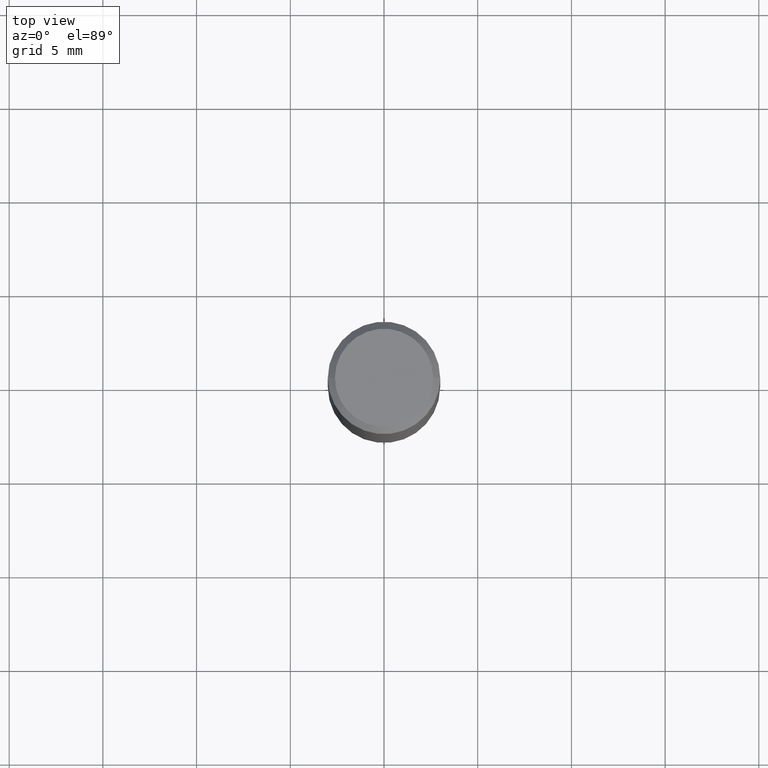
[diagram: clean part render]
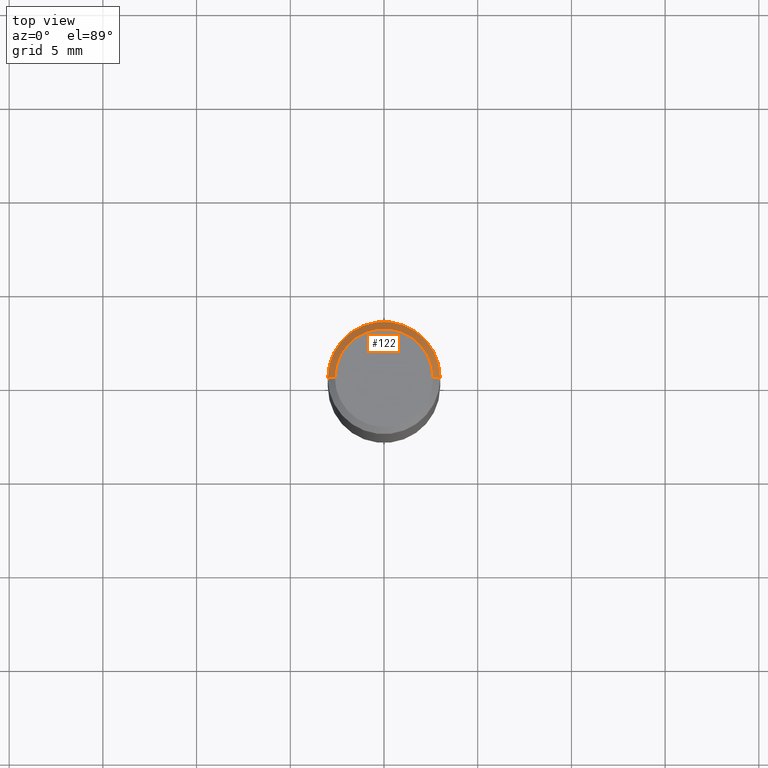
[diagram: same view with one face highlighted and labeled with its STEP entity id]
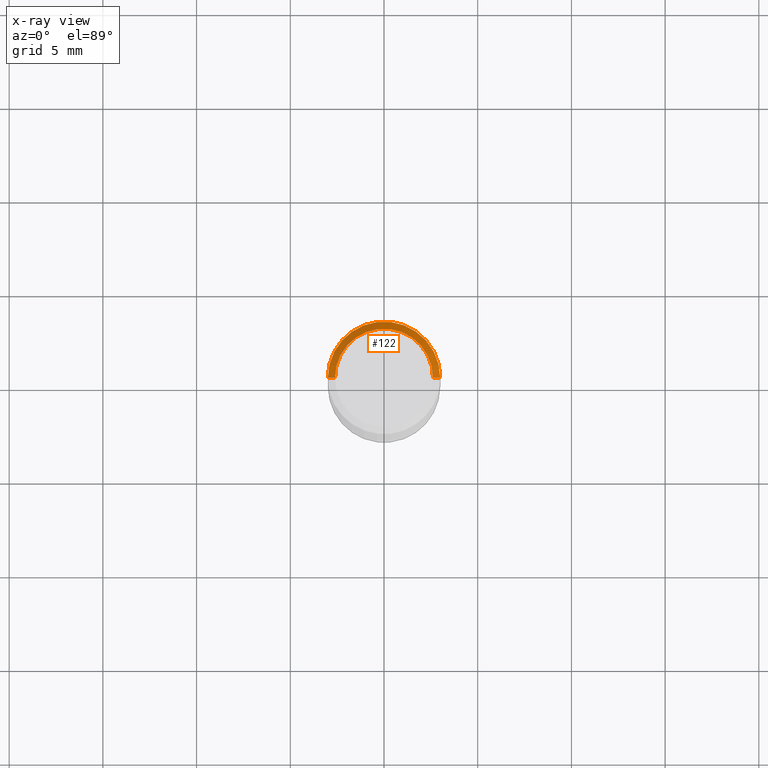
[diagram: x-ray of the same camera — body ghosted, the highlighted face saturated]
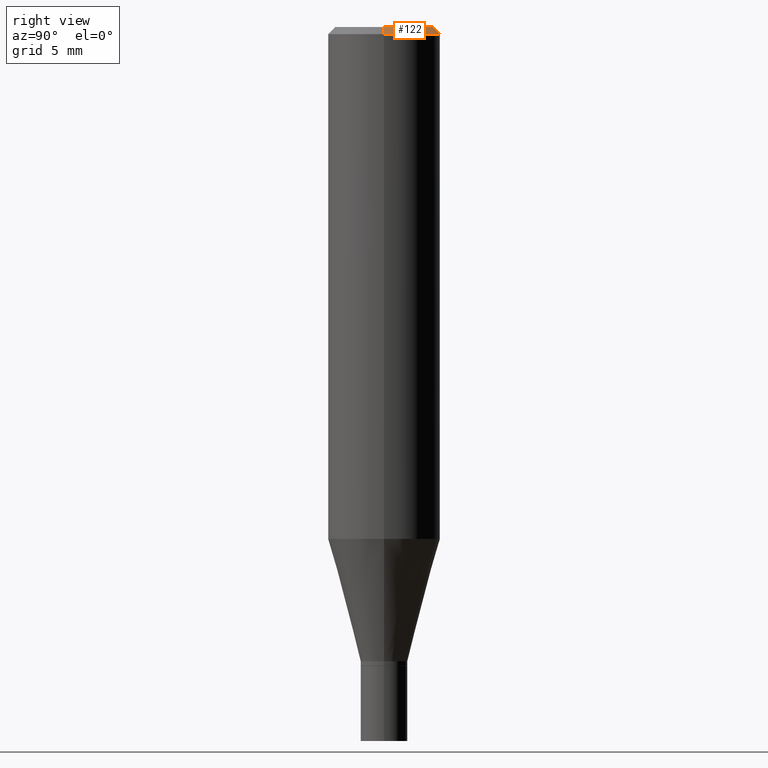
[diagram: same view with one face highlighted and labeled with its STEP entity id]
A machine part, top view. The second image highlights one B-rep face of the part: STEP entity #122.
The next image is the same camera in x-ray: the body ghosted, the highlighted face saturated — about 0% of this face is hidden behind the body in this view.
A second angle (right view) of the same face is appended — the face is thin or edge-on in the first view.
In plain terms, the highlighted conical surface has half-angle 45 deg.
Its self-contained STEP definition (entity closure, byte-faithful):
#3 = FACE_OUTER_BOUND ( 'NONE', #30, .T. ) ;
#28 = ORIENTED_EDGE ( 'NONE', *, *, #133, .T. ) ;
#30 = EDGE_LOOP ( 'NONE', ( #260, #422, #28, #124 ) ) ;
#37 = CARTESIAN_POINT ( 'NONE',  ( 3.668203209277705088E-31, -5.237222008264718399E-17, -0.01499999999999999944 ) ) ;
#57 = CONICAL_SURFACE ( 'NONE', #105, 0.1180999999999999966, 0.7853981633974160825 ) ;
#82 = CARTESIAN_POINT ( 'NONE',  ( 3.668203209277705088E-31, -5.237222008264718399E-17, -0.01499999999999999944 ) ) ;
#90 = CARTESIAN_POINT ( 'NONE',  ( -2.356111900284270779E-44, 3.363903359250623461E-30, 9.634602143871708828E-16 ) ) ;
#105 = AXIS2_PLACEMENT_3D ( 'NONE', #37, #254, #400 ) ;
#118 = DIRECTION ( 'NONE',  ( -2.445468806185136597E-29, 3.491481338843145583E-15, 1.000000000000000000 ) ) ;
#122 = ADVANCED_FACE ( 'NONE', ( #3 ), #57, .T. ) ;
#124 = ORIENTED_EDGE ( 'NONE', *, *, #271, .F. ) ;
#133 = EDGE_CURVE ( 'NONE', #170, #311, #252, .T. ) ;
#136 = VERTEX_POINT ( 'NONE', #140 ) ;
#140 = CARTESIAN_POINT ( 'NONE',  ( -0.1031000000000000111, 7.461295621107793201E-16, 9.634602143871657552E-16 ) ) ;
#153 = DIRECTION ( 'NONE',  ( -0.7071067811865247021, 2.468850131082017641E-15, -0.7071067811865703323 ) ) ;
#162 = LINE ( 'NONE', #390, #415 ) ;
#170 = VERTEX_POINT ( 'NONE', #362 ) ;
#183 = DIRECTION ( 'NONE',  ( -2.445468806185136597E-29, 3.491481338843145583E-15, 1.000000000000000000 ) ) ;
#224 = VERTEX_POINT ( 'NONE', #444 ) ;
#237 = EDGE_CURVE ( 'NONE', #224, #136, #326, .T. ) ;
#252 = CIRCLE ( 'NONE', #315, 0.1180999999999999966 ) ;
#254 = DIRECTION ( 'NONE',  ( 2.445468806185136597E-29, -3.491481338843145583E-15, -1.000000000000000000 ) ) ;
#260 = ORIENTED_EDGE ( 'NONE', *, *, #237, .F. ) ;
#265 = CARTESIAN_POINT ( 'NONE',  ( -0.1180999999999999966, 7.723156721521009862E-16, -0.01499999999999999944 ) ) ;
#269 = AXIS2_PLACEMENT_3D ( 'NONE', #90, #118, #410 ) ;
#271 = EDGE_CURVE ( 'NONE', #136, #311, #301, .T. ) ;
#301 = LINE ( 'NONE', #265, #394 ) ;
#311 = VERTEX_POINT ( 'NONE', #380 ) ;
#315 = AXIS2_PLACEMENT_3D ( 'NONE', #82, #183, #323 ) ;
#323 = DIRECTION ( 'NONE',  ( 1.000000000000000000, -6.982962677686266711E-15, 0.000000000000000000 ) ) ;
#326 = CIRCLE ( 'NONE', #269, 0.1031000000000000111 ) ;
#356 = EDGE_CURVE ( 'NONE', #224, #170, #162, .T. ) ;
#362 = CARTESIAN_POINT ( 'NONE',  ( 0.1180999999999999966, -8.770601123173952432E-16, -0.01499999999999999944 ) ) ;
#380 = CARTESIAN_POINT ( 'NONE',  ( -0.1180999999999999966, -1.064337792017081499E-15, -0.01499999999999999944 ) ) ;
#390 = CARTESIAN_POINT ( 'NONE',  ( 0.1180999999999999966, -8.625970336194650129E-16, -0.01499999999999999944 ) ) ;
#394 = VECTOR ( 'NONE', #153, 39.37007874015748143 ) ;
#400 = DIRECTION ( 'NONE',  ( -1.000000000000000000, 6.982962677686266711E-15, 0.000000000000000000 ) ) ;
#410 = DIRECTION ( 'NONE',  ( 1.000000000000000000, -6.982962677686265922E-15, 4.824495916043694704E-29 ) ) ;
#415 = VECTOR ( 'NONE', #418, 39.37007874015748143 ) ;
#418 = DIRECTION ( 'NONE',  ( 0.7071067811865247021, -7.319954787623178737E-15, -0.7071067811865703323 ) ) ;
#422 = ORIENTED_EDGE ( 'NONE', *, *, #356, .T. ) ;
#444 = CARTESIAN_POINT ( 'NONE',  ( 0.1031000000000000111, -7.849571885948532984E-16, 9.634602143871762076E-16 ) ) ;